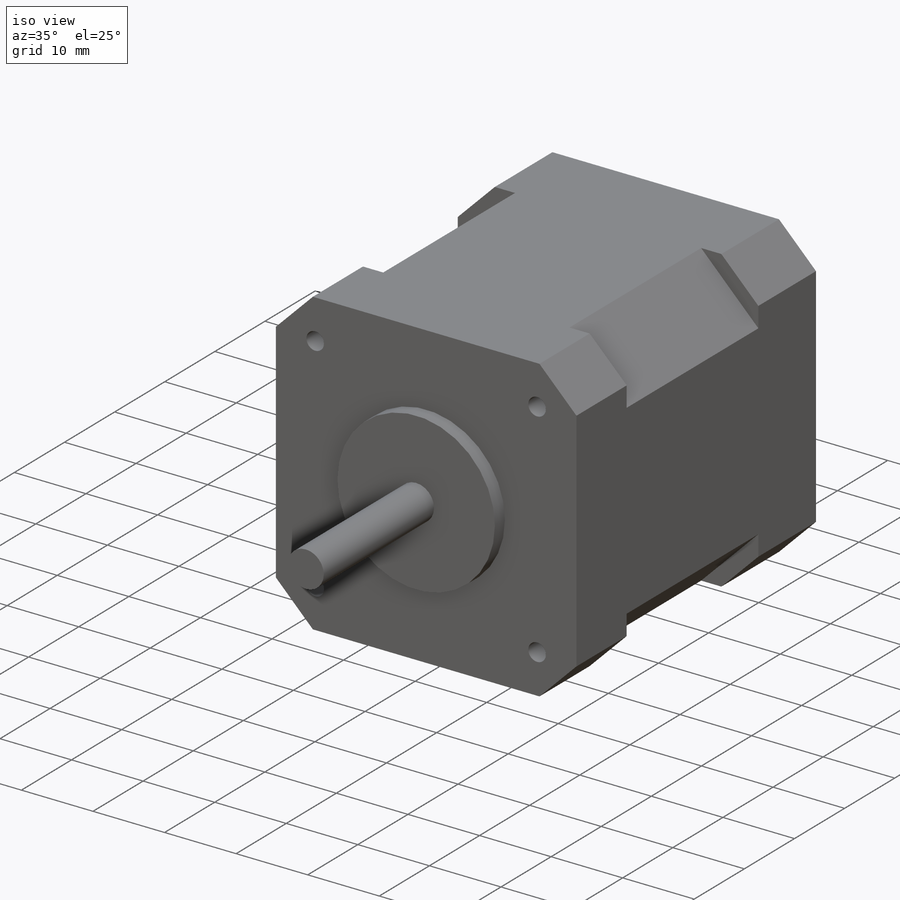
[diagram: iso view]
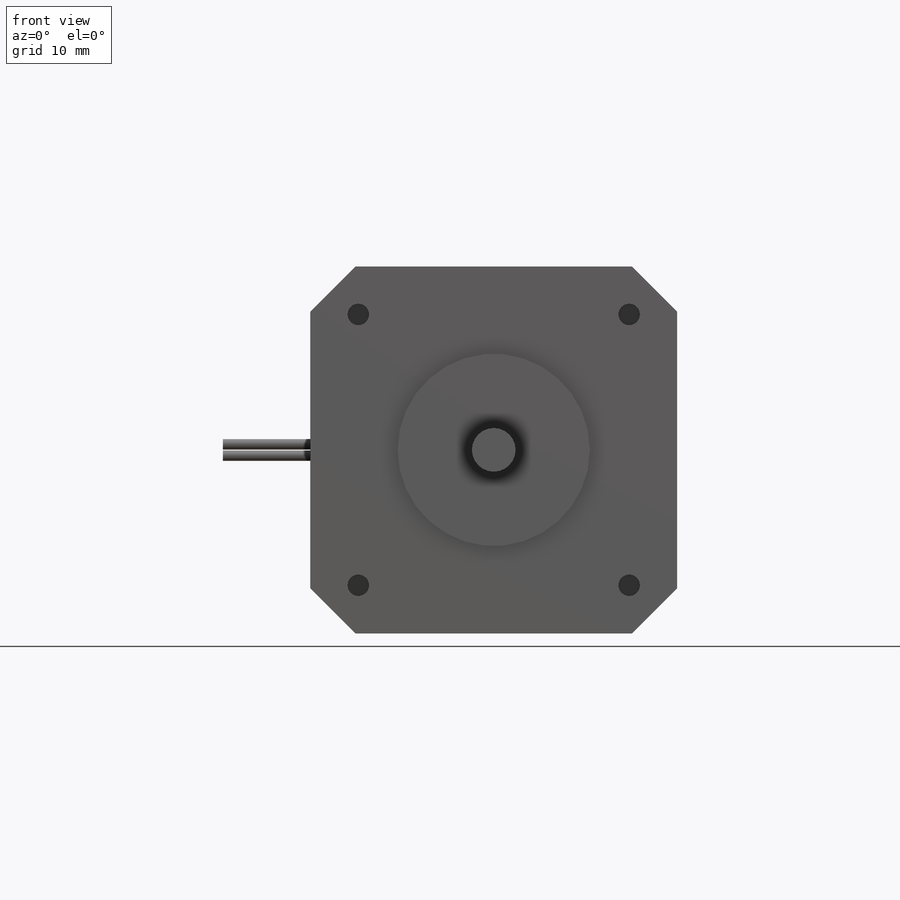
[diagram: front view]
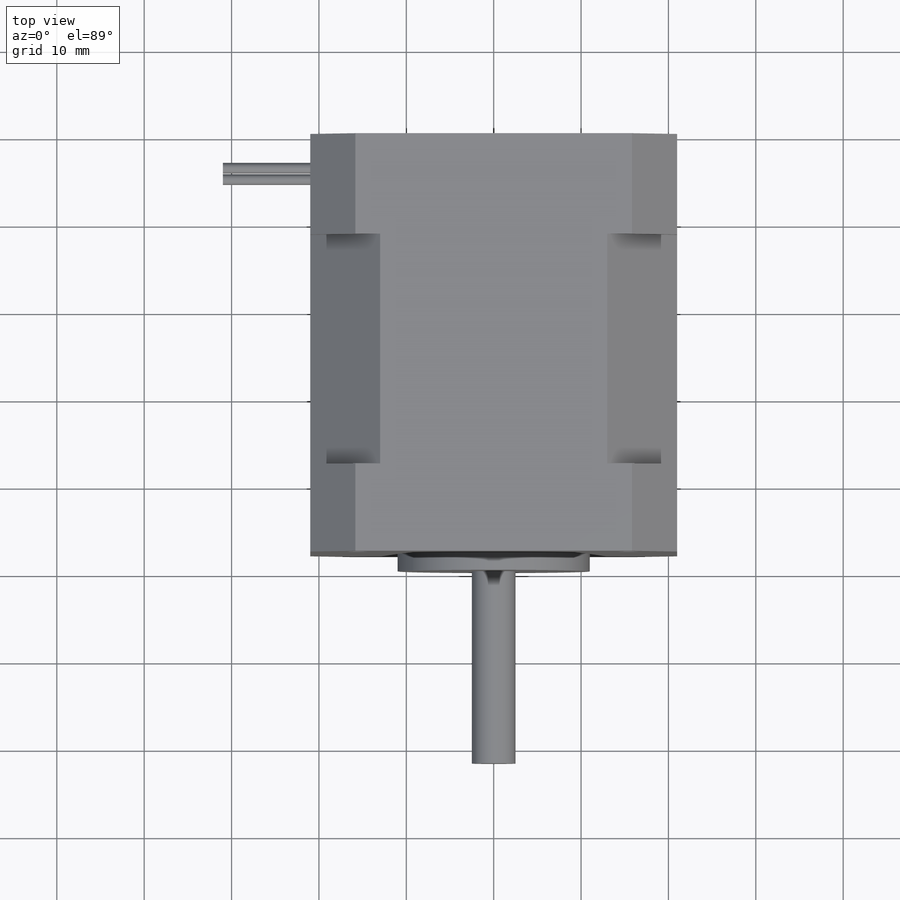
[diagram: top view]
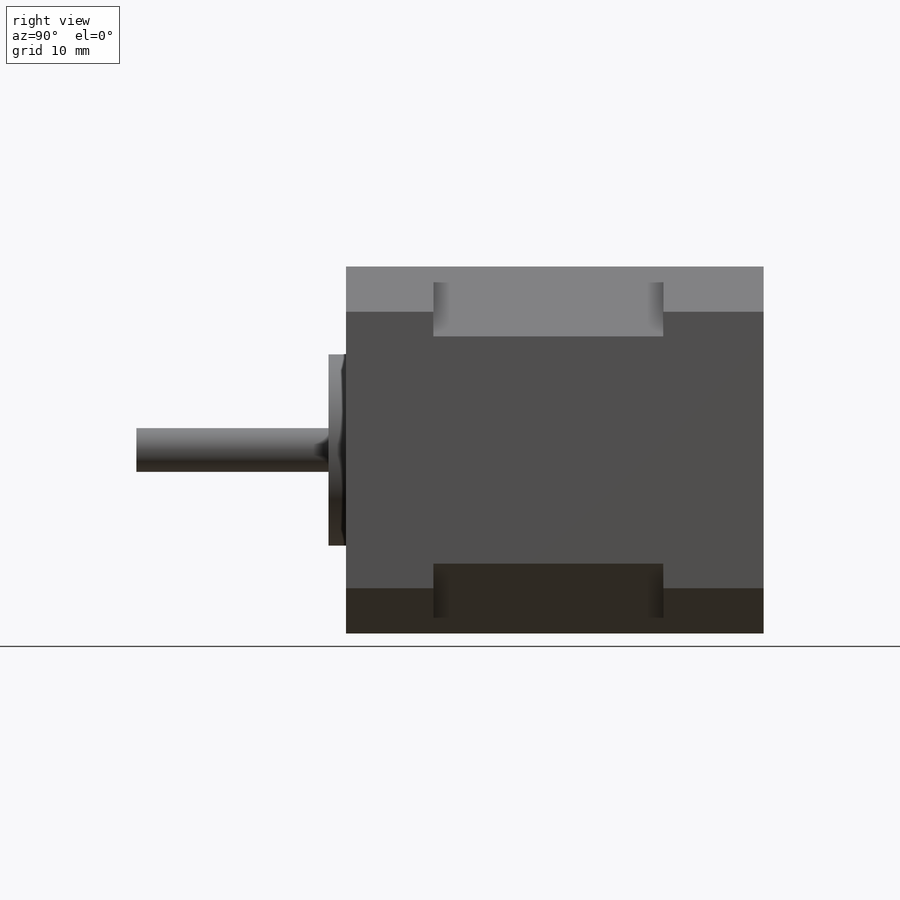
[diagram: right view]
SOLIDWORKS PART (.sldprt)
format: sldprt  version: not decoded by parser v0  size: 256,000 bytes
history: native  units: mm
features: sketch x16, revolve x5, plane x4, hole x4, extrude x3, material x1 (+12 scaffold rows collapsed)
feature tree (45):
  scaffold x12  (default folders/planes/origin — collapsed)
  material  "Material <not specified>"
  plane  "Plane1"
  sketch  "Sketch1"
  extrude  "Boss-Extrude1"  Depth=11.5mm
  sketch  "Sketch2"
  extrude  "Boss-Extrude2"  Depth=26.3mm
  sketch  "Sketch3"
  extrude  "Boss-Extrude3"  Depth=10mm
  plane  "Plane2"  Offset=3.65mm
  sketch  "Sketch4"
  revolve  "Revolve1"  Angle=360deg
  sketch  "Sketch5"
  revolve  "Revolve2"  Angle=360deg
  plane  "Plane3"  Offset=4.95mm
  sketch  "Sketch6"
  revolve  "Revolve3"  Angle=360deg
  sketch  "Sketch7"
  revolve  "Revolve4"  Angle=360deg
  plane  "Plane4"
  sketch  "Sketch8"
  revolve  "Revolve5"  Angle=360deg
  hole  "Hole1"  Diameter=2.459mm Depth=5mm
  sketch  "Sketch10"
  sketch  "Sketch9"  dims[Diameter=2.459mm Depth=5.0mm]
  hole  "Hole2"  Diameter=2.459mm Depth=5mm
  sketch  "Sketch12"
  sketch  "Sketch11"  dims[Diameter=2.459mm Depth=5.0mm]
  hole  "Hole3"  Diameter=2.459mm Depth=5mm
  sketch  "Sketch14"
  sketch  "Sketch13"  dims[Diameter=2.459mm Depth=5.0mm]
  hole  "Hole4"  Diameter=2.459mm Depth=5mm
  sketch  "Sketch16"
  sketch  "Sketch15"  dims[Diameter=2.459mm Depth=5.0mm]
decode coverage: 16 of 28 modeling features carry decoded parameters
summary: Diameter pulled from absorbed wizard sketch
note: suppression state not decoded; provenance and decode notes live in map.json
